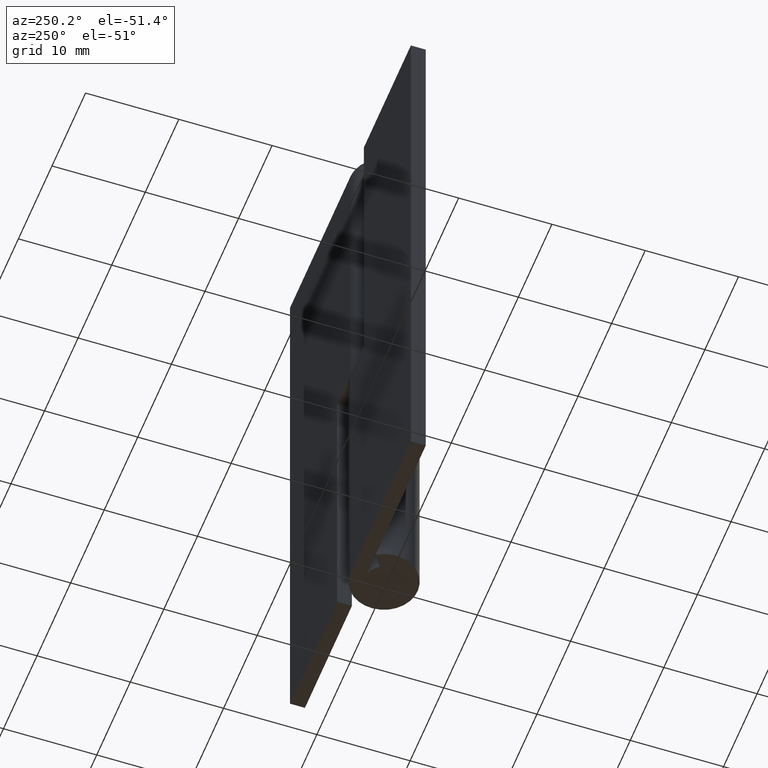
[diagram: clean part render]
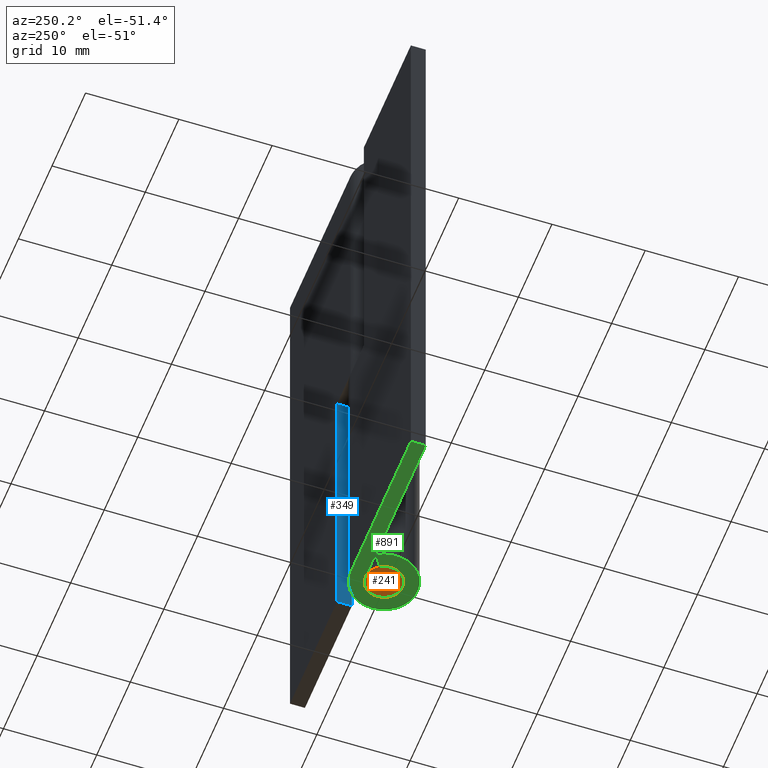
[diagram: same view with three faces highlighted in distinct colors, each labeled with its STEP entity id]
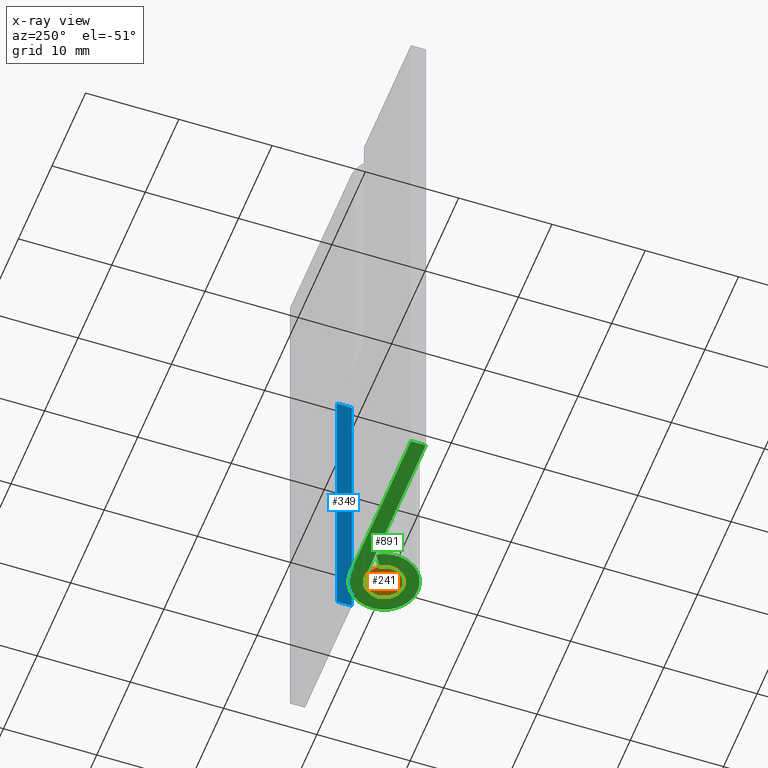
[diagram: x-ray of the same camera — body ghosted, the three highlighted faces saturated]
A machine part, auxiliary view with three faces highlighted in distinct colors.
The next image is the same camera in x-ray (body ghosted, the three faces saturated) — at least one of them is partly hidden behind the body in this view.
Their STEP definitions:

[orange] entity #241 — the highlighted face is a freeform B-spline surface patch.
#66=CARTESIAN_POINT('',(-0.236068460313633,1.986018975049470,2.725851E-015));
#67=VERTEX_POINT('',#66);
#68=CARTESIAN_POINT('',(2.0,0.0,0.0));
#69=VERTEX_POINT('',#68);
#70=CARTESIAN_POINT('',(-0.236068460313633,1.986018975049470,2.725851E-015));
#71=CARTESIAN_POINT('',(-0.118448239536309,2.0,0.0));
#72=CARTESIAN_POINT('',(0.0,2.0,0.0));
#73=CARTESIAN_POINT('',(2.000000000000000,2.000000000000000,0.0));
#74=CARTESIAN_POINT('',(2.0,0.0,0.0));
#82=(BOUNDED_CURVE()B_SPLINE_CURVE(2,(#70,#71,#72,#73,#74),.UNSPECIFIED.,.F.,.U.)B_SPLINE_CURVE_WITH_KNOTS((3,2,3),(0.229562473476490,0.250000000000000,0.500000000000000),.UNSPECIFIED.)CURVE()GEOMETRIC_REPRESENTATION_ITEM()RATIONAL_B_SPLINE_CURVE((0.956026754111142,0.976055948287776,1.0,0.707106781186548,1.0))REPRESENTATION_ITEM(''));
#83=EDGE_CURVE('',#67,#69,#82,.T.);
#124=CARTESIAN_POINT('',(0.122097074372659,-1.996269518787739,2.775558E-015));
#125=VERTEX_POINT('',#124);
#131=CARTESIAN_POINT('',(2.0,0.0,0.0));
#132=CARTESIAN_POINT('',(2.000000000000000,-1.881412133666420,0.0));
#133=CARTESIAN_POINT('',(0.122097074372659,-1.996269518787739,2.775558E-015));
#141=(BOUNDED_CURVE()B_SPLINE_CURVE(2,(#131,#132,#133),.UNSPECIFIED.,.F.,.U.)B_SPLINE_CURVE_WITH_KNOTS((3,3),(0.500000000000000,0.739332962228698),.UNSPECIFIED.)CURVE()GEOMETRIC_REPRESENTATION_ITEM()RATIONAL_B_SPLINE_CURVE((1.0,0.719603993298713,0.976072041644760))REPRESENTATION_ITEM(''));
#142=EDGE_CURVE('',#69,#125,#141,.T.);
#165=CARTESIAN_POINT('',(-2.0,0.0,0.0));
#166=VERTEX_POINT('',#165);
#167=CARTESIAN_POINT('',(-2.0,0.0,0.0));
#168=CARTESIAN_POINT('',(-2.0,1.776349051488299,0.0));
#169=CARTESIAN_POINT('',(-0.236068460313633,1.986018975049470,2.725851E-015));
#177=(BOUNDED_CURVE()B_SPLINE_CURVE(2,(#167,#168,#169),.UNSPECIFIED.,.F.,.U.)B_SPLINE_CURVE_WITH_KNOTS((3,3),(0.0,0.229562473476490),.UNSPECIFIED.)CURVE()GEOMETRIC_REPRESENTATION_ITEM()RATIONAL_B_SPLINE_CURVE((1.0,0.731050832898772,0.956026754111142))REPRESENTATION_ITEM(''));
#178=EDGE_CURVE('',#166,#67,#177,.T.);
#180=CARTESIAN_POINT('',(0.122097074372659,-1.996269518787740,2.775558E-015));
#181=CARTESIAN_POINT('',(0.061105526674160,-2.000000000000000,0.0));
#182=CARTESIAN_POINT('',(0.0,-2.0,0.0));
#183=CARTESIAN_POINT('',(-2.000000000000000,-2.000000000000000,0.0));
#184=CARTESIAN_POINT('',(-2.0,0.0,0.0));
#192=(BOUNDED_CURVE()B_SPLINE_CURVE(2,(#180,#181,#182,#183,#184),.UNSPECIFIED.,.F.,.U.)B_SPLINE_CURVE_WITH_KNOTS((3,2,3),(0.739332962228698,0.750000000000000,1.0),.UNSPECIFIED.)CURVE()GEOMETRIC_REPRESENTATION_ITEM()RATIONAL_B_SPLINE_CURVE((0.976072041644760,0.987502787887834,1.0,0.707106781186548,1.0))REPRESENTATION_ITEM(''));
#193=EDGE_CURVE('',#125,#166,#192,.T.);
#230=CARTESIAN_POINT('',(2.199799992247224,-2.199751314024727,0.0));
#231=CARTESIAN_POINT('',(-2.199800099535584,-2.199751314024727,0.0));
#232=CARTESIAN_POINT('',(2.199799992247224,2.199763616423408,0.0));
#233=CARTESIAN_POINT('',(-2.199800099535584,2.199763616423408,0.0));
#234=B_SPLINE_SURFACE_WITH_KNOTS('',1,1,((#230,#232),(#231,#233)),.UNSPECIFIED.,.F.,.F.,.U.,(2,2),(2,2),(0.0,4.399600091782808),(0.0,4.399514930448135),.UNSPECIFIED.);
#235=ORIENTED_EDGE('',*,*,#178,.T.);
#236=ORIENTED_EDGE('',*,*,#83,.T.);
#237=ORIENTED_EDGE('',*,*,#142,.T.);
#238=ORIENTED_EDGE('',*,*,#193,.T.);
#239=EDGE_LOOP('',(#235,#236,#237,#238));
#240=FACE_OUTER_BOUND('',#239,.T.);
#241=ADVANCED_FACE('',(#240),#234,.T.);

[blue] entity #349 — the highlighted face is a freeform B-spline surface patch.
#314=CARTESIAN_POINT('',(4.0,1.920080103001107,33.598408037184647));
#315=CARTESIAN_POINT('',(4.0,1.920080103001107,-1.598401181594062));
#316=CARTESIAN_POINT('',(4.0,3.679917939914185,33.598408037184647));
#317=CARTESIAN_POINT('',(4.0,3.679917939914185,-1.598401181594062));
#318=B_SPLINE_SURFACE_WITH_KNOTS('',1,1,((#314,#316),(#315,#317)),.UNSPECIFIED.,.F.,.F.,.U.,(2,2),(2,2),(0.0,35.196809218778711),(0.041708334948495,0.958291687403247),.UNSPECIFIED.);
#319=CARTESIAN_POINT('',(4.0,2.0,0.0));
#320=VERTEX_POINT('',#319);
#321=CARTESIAN_POINT('',(4.0,2.0,32.000008000000051));
#322=VERTEX_POINT('',#321);
#323=CARTESIAN_POINT('',(4.0,2.0,0.0));
#324=CARTESIAN_POINT('',(4.0,2.0,32.000008000000051));
#325=QUASI_UNIFORM_CURVE('',1,(#323,#324),.UNSPECIFIED.,.F.,.U.);
#326=EDGE_CURVE('',#320,#322,#325,.T.);
#327=ORIENTED_EDGE('',*,*,#326,.T.);
#328=CARTESIAN_POINT('',(4.0,3.599998000000000,32.000008000000051));
#329=VERTEX_POINT('',#328);
#330=CARTESIAN_POINT('',(4.0,3.599998000000000,32.000008000000051));
#331=CARTESIAN_POINT('',(4.0,2.0,32.000008000000051));
#332=QUASI_UNIFORM_CURVE('',1,(#330,#331),.UNSPECIFIED.,.F.,.U.);
#333=EDGE_CURVE('',#329,#322,#332,.T.);
#334=ORIENTED_EDGE('',*,*,#333,.F.);
#335=CARTESIAN_POINT('',(4.0,3.599998000000000,0.0));
#336=VERTEX_POINT('',#335);
#337=CARTESIAN_POINT('',(4.0,3.599998000000000,0.0));
#338=CARTESIAN_POINT('',(4.0,3.599998000000000,32.000008000000051));
#339=QUASI_UNIFORM_CURVE('',1,(#337,#338),.UNSPECIFIED.,.F.,.U.);
#340=EDGE_CURVE('',#336,#329,#339,.T.);
#341=ORIENTED_EDGE('',*,*,#340,.F.);
#342=CARTESIAN_POINT('',(4.0,3.599998000000000,0.0));
#343=CARTESIAN_POINT('',(4.0,2.0,0.0));
#344=QUASI_UNIFORM_CURVE('',1,(#342,#343),.UNSPECIFIED.,.F.,.U.);
#345=EDGE_CURVE('',#336,#320,#344,.T.);
#346=ORIENTED_EDGE('',*,*,#345,.T.);
#347=EDGE_LOOP('',(#327,#334,#341,#346));
#348=FACE_OUTER_BOUND('',#347,.T.);
#349=ADVANCED_FACE('',(#348),#318,.F.);

[green] entity #891 — the highlighted face is a freeform B-spline surface patch.
#814=CARTESIAN_POINT('',(-19.078902572909620,-3.958065010808940,0.0));
#815=CARTESIAN_POINT('',(4.678555099683614,-3.958065010808940,0.0));
#816=CARTESIAN_POINT('',(-19.078902572909620,3.959563156589238,0.0));
#817=CARTESIAN_POINT('',(4.678555099683614,3.959563156589238,0.0));
#818=B_SPLINE_SURFACE_WITH_KNOTS('',1,1,((#814,#816),(#815,#817)),.UNSPECIFIED.,.F.,.F.,.U.,(2,2),(2,2),(0.0,23.757457672593230),(0.0,7.917628167398179),.UNSPECIFIED.);
#819=CARTESIAN_POINT('',(-1.681186750152670,1.083333333333330,0.0));
#820=VERTEX_POINT('',#819);
#821=CARTESIAN_POINT('',(-3.026136150274805,1.950000000000000,0.0));
#822=VERTEX_POINT('',#821);
#823=CARTESIAN_POINT('',(-1.681186750152670,1.083333333333330,0.0));
#824=CARTESIAN_POINT('',(-3.026136150274805,1.950000000000000,0.0));
#825=QUASI_UNIFORM_CURVE('',1,(#823,#824),.UNSPECIFIED.,.F.,.U.);
#826=EDGE_CURVE('',#820,#822,#825,.T.);
#827=ORIENTED_EDGE('',*,*,#826,.F.);
#828=CARTESIAN_POINT('',(0.0,2.0,0.0));
#829=VERTEX_POINT('',#828);
#830=CARTESIAN_POINT('',(0.0,2.0,0.0));
#831=CARTESIAN_POINT('',(1.554136556548023,2.000000000000000,0.0));
#832=CARTESIAN_POINT('',(1.938025359003881,0.494021971027481,0.0));
#833=CARTESIAN_POINT('',(2.321914161459739,-1.011956057945037,0.0));
#834=CARTESIAN_POINT('',(0.957427107756340,-1.755942292142122,0.0));
#835=CARTESIAN_POINT('',(-0.407059945947058,-2.499928526339207,0.0));
#836=CARTESIAN_POINT('',(-1.465035332114952,-1.361496043202048,0.0));
#837=CARTESIAN_POINT('',(-2.523010718282846,-0.223063560064887,0.0));
#838=CARTESIAN_POINT('',(-1.681186750152670,1.083333333333330,0.0));
#846=(BOUNDED_CURVE()B_SPLINE_CURVE(2,(#830,#831,#832,#833,#834,#835,#836,#837,#838),.UNSPECIFIED.,.F.,.U.)B_SPLINE_CURVE_WITH_KNOTS((3,2,2,2,3),(0.0,0.250000000000000,0.500000000000000,0.750000000000000,1.0),.UNSPECIFIED.)CURVE()GEOMETRIC_REPRESENTATION_ITEM()RATIONAL_B_SPLINE_CURVE((1.0,0.789623639943024,1.0,0.789623639943024,1.0,0.789623639943024,1.0,0.789623639943024,1.0))REPRESENTATION_ITEM(''));
#847=EDGE_CURVE('',#829,#820,#846,.T.);
#848=ORIENTED_EDGE('',*,*,#847,.F.);
#849=CARTESIAN_POINT('',(-18.0,2.0,0.0));
#850=VERTEX_POINT('',#849);
#851=CARTESIAN_POINT('',(-18.0,2.0,0.0));
#852=CARTESIAN_POINT('',(0.0,2.0,0.0));
#853=QUASI_UNIFORM_CURVE('',1,(#851,#852),.UNSPECIFIED.,.F.,.U.);
#854=EDGE_CURVE('',#850,#829,#853,.T.);
#855=ORIENTED_EDGE('',*,*,#854,.F.);
#856=CARTESIAN_POINT('',(-18.0,3.599998000000000,0.0));
#857=VERTEX_POINT('',#856);
#858=CARTESIAN_POINT('',(-18.0,3.599998000000000,0.0));
#859=CARTESIAN_POINT('',(-18.0,2.0,0.0));
#860=QUASI_UNIFORM_CURVE('',1,(#858,#859),.UNSPECIFIED.,.F.,.U.);
#861=EDGE_CURVE('',#857,#850,#860,.T.);
#862=ORIENTED_EDGE('',*,*,#861,.F.);
#863=CARTESIAN_POINT('',(-0.003794732665983,3.599998000000000,0.0));
#864=VERTEX_POINT('',#863);
#865=CARTESIAN_POINT('',(-0.003794732665983,3.599998000000000,0.0));
#866=CARTESIAN_POINT('',(-18.0,3.599998000000000,0.0));
#867=QUASI_UNIFORM_CURVE('',1,(#865,#866),.UNSPECIFIED.,.F.,.U.);
#868=EDGE_CURVE('',#864,#857,#867,.T.);
#869=ORIENTED_EDGE('',*,*,#868,.F.);
#870=CARTESIAN_POINT('',(-0.003794732665984,3.599997999999999,0.0));
#871=CARTESIAN_POINT('',(2.794410358292486,3.602947568378865,0.0));
#872=CARTESIAN_POINT('',(3.487741550519032,0.891997128237027,0.0));
#873=CARTESIAN_POINT('',(4.181072742745578,-1.818953311904812,0.0));
#874=CARTESIAN_POINT('',(1.725034387729875,-3.159787391763790,0.0));
#875=CARTESIAN_POINT('',(-0.731003967285830,-4.500621471622770,0.0));
#876=CARTESIAN_POINT('',(-2.636417691941365,-2.451387719969765,0.0));
#877=CARTESIAN_POINT('',(-4.541831416596898,-0.402153968316764,0.0));
#878=CARTESIAN_POINT('',(-3.026136150274803,1.949999999999999,0.0));
#886=(BOUNDED_CURVE()B_SPLINE_CURVE(2,(#870,#871,#872,#873,#874,#875,#876,#877,#878),.UNSPECIFIED.,.F.,.U.)B_SPLINE_CURVE_WITH_KNOTS((3,2,2,2,3),(0.0,0.250000000000000,0.500000000000000,0.750000000000000,1.0),.UNSPECIFIED.)CURVE()GEOMETRIC_REPRESENTATION_ITEM()RATIONAL_B_SPLINE_CURVE((1.0,0.789542785308575,1.0,0.789542785308575,1.0,0.789542785308575,1.0,0.789542785308575,1.0))REPRESENTATION_ITEM(''));
#887=EDGE_CURVE('',#864,#822,#886,.T.);
#888=ORIENTED_EDGE('',*,*,#887,.T.);
#889=EDGE_LOOP('',(#827,#848,#855,#862,#869,#888));
#890=FACE_OUTER_BOUND('',#889,.T.);
#891=ADVANCED_FACE('',(#890),#818,.F.);